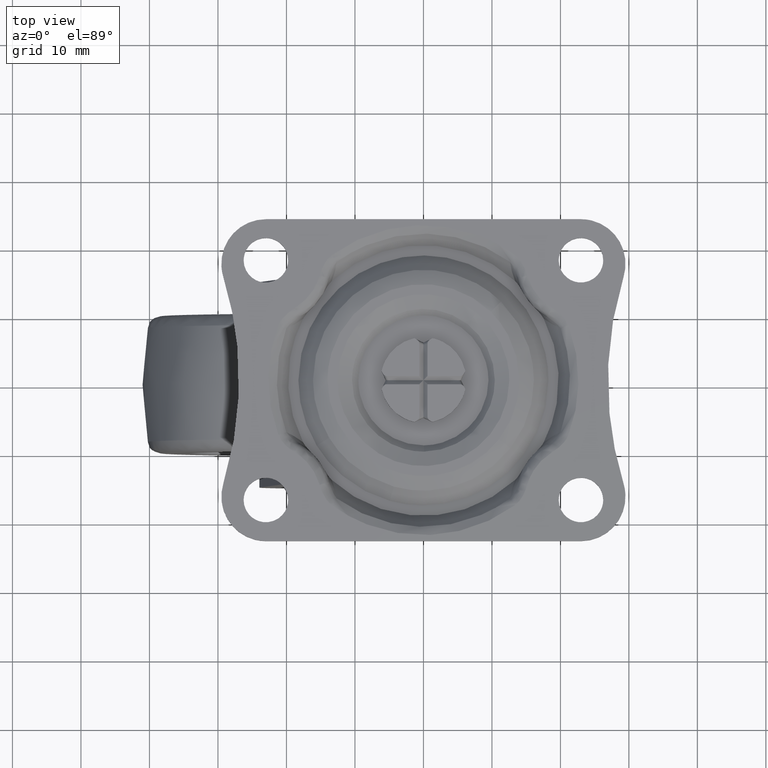
[diagram: clean part render]
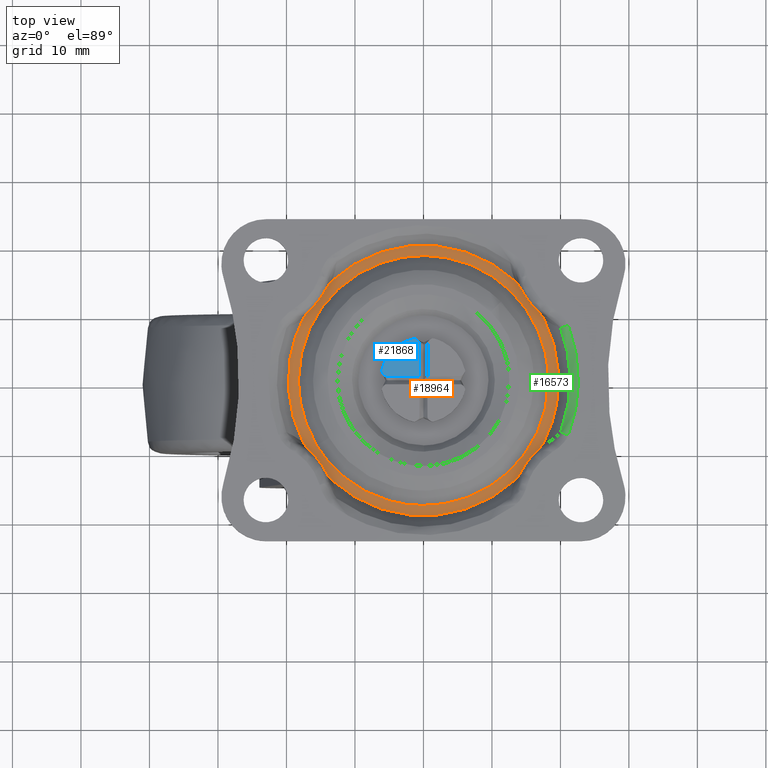
[diagram: same view with three faces highlighted in distinct colors, each labeled with its STEP entity id]
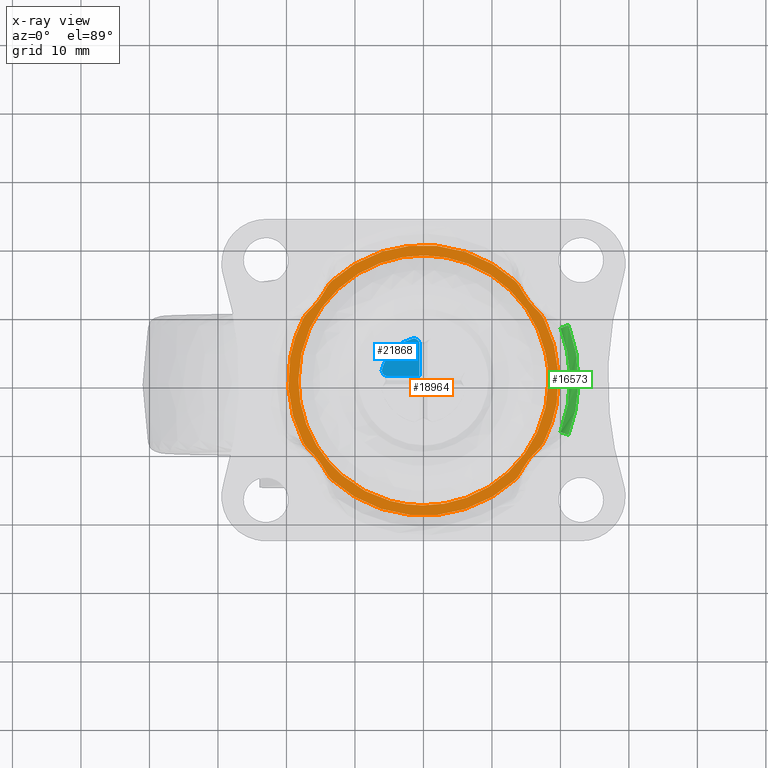
[diagram: x-ray of the same camera — body ghosted, the three highlighted faces saturated]
A machine part, top view with three faces highlighted in distinct colors.
The next image is the same camera in x-ray (body ghosted, the three faces saturated) — at least one of them is partly hidden behind the body in this view.
Their STEP definitions:

[orange] entity #18964 — the highlighted face is a freeform B-spline surface patch.
#10193=CARTESIAN_POINT('',(-4.877100363517283,-17.586255771042829,-3.000000000009800));
#10194=VERTEX_POINT('',#10193);
#10200=CARTESIAN_POINT('',(18.250000000000000,0.0,-3.0));
#10201=VERTEX_POINT('',#10200);
#10202=CARTESIAN_POINT('',(18.250000000000000,0.0,-3.0));
#10203=CARTESIAN_POINT('',(18.250000000000000,-18.250000000000000,-3.000000000000000));
#10204=CARTESIAN_POINT('',(0.0,-18.250000000000000,-3.0));
#10205=CARTESIAN_POINT('',(-2.483715994340138,-18.250000000000000,-3.000000000000000));
#10206=CARTESIAN_POINT('',(-4.877100363517283,-17.586255771042829,-3.000000000009800));
#10214=(BOUNDED_CURVE()B_SPLINE_CURVE(2,(#10202,#10203,#10204,#10205,#10206),.UNSPECIFIED.,.F.,.U.)B_SPLINE_CURVE_WITH_KNOTS((3,2,3),(0.500000000000000,0.750000000000000,0.795548826635574),.UNSPECIFIED.)CURVE()GEOMETRIC_REPRESENTATION_ITEM()RATIONAL_B_SPLINE_CURVE((1.0,0.707106781186547,1.0,0.946636230214123,0.912717717217027))REPRESENTATION_ITEM(''));
#10215=EDGE_CURVE('',#10201,#10194,#10214,.T.);
#10217=CARTESIAN_POINT('',(-18.250000000000000,0.0,-3.0));
#10218=VERTEX_POINT('',#10217);
#10219=CARTESIAN_POINT('',(-18.250000000000000,0.0,-3.0));
#10220=CARTESIAN_POINT('',(-18.250000000000000,18.250000000000000,-3.000000000000000));
#10221=CARTESIAN_POINT('',(0.0,18.250000000000000,-3.0));
#10222=CARTESIAN_POINT('',(18.250000000000000,18.250000000000000,-3.000000000000000));
#10223=CARTESIAN_POINT('',(18.250000000000000,0.0,-3.0));
#10231=(BOUNDED_CURVE()B_SPLINE_CURVE(2,(#10219,#10220,#10221,#10222,#10223),.UNSPECIFIED.,.F.,.U.)B_SPLINE_CURVE_WITH_KNOTS((3,2,3),(0.0,0.250000000000000,0.500000000000000),.UNSPECIFIED.)CURVE()GEOMETRIC_REPRESENTATION_ITEM()RATIONAL_B_SPLINE_CURVE((1.0,0.707106781186547,1.0,0.707106781186547,1.0))REPRESENTATION_ITEM(''));
#10232=EDGE_CURVE('',#10218,#10201,#10231,.T.);
#10234=CARTESIAN_POINT('',(-15.577560697691240,-9.508002035643688,-3.000000000001631));
#10235=VERTEX_POINT('',#10234);
#10236=CARTESIAN_POINT('',(-15.577560697691242,-9.508002035643688,-3.000000000001631));
#10237=CARTESIAN_POINT('',(-18.249999999999996,-5.129575812507438,-3.0));
#10238=CARTESIAN_POINT('',(-18.250000000000000,0.0,-3.0));
#10246=(BOUNDED_CURVE()B_SPLINE_CURVE(2,(#10236,#10237,#10238),.UNSPECIFIED.,.F.,.U.)B_SPLINE_CURVE_WITH_KNOTS((3,3),(0.910988855203997,1.0),.UNSPECIFIED.)CURVE()GEOMETRIC_REPRESENTATION_ITEM()RATIONAL_B_SPLINE_CURVE((0.865692738530199,0.895716957161714,1.0))REPRESENTATION_ITEM(''));
#10247=EDGE_CURVE('',#10235,#10218,#10246,.T.);
#10285=CARTESIAN_POINT('',(-4.877100363517283,-17.586255771042826,-3.000000000009800));
#10286=CARTESIAN_POINT('',(-11.822521553776632,-15.660120006066887,-3.0));
#10287=CARTESIAN_POINT('',(-15.577560697691245,-9.508002035643688,-3.000000000001630));
#10295=(BOUNDED_CURVE()B_SPLINE_CURVE(2,(#10285,#10286,#10287),.UNSPECIFIED.,.F.,.U.)B_SPLINE_CURVE_WITH_KNOTS((3,3),(0.795548826635575,0.910988855203998),.UNSPECIFIED.)CURVE()GEOMETRIC_REPRESENTATION_ITEM()RATIONAL_B_SPLINE_CURVE((0.912717717217026,0.826753831896540,0.865692738530200))REPRESENTATION_ITEM(''));
#10296=EDGE_CURVE('',#10194,#10235,#10295,.T.);
#15747=CARTESIAN_POINT('',(13.377012107341500,-14.529901826235401,-3.0));
#15748=VERTEX_POINT('',#15747);
#15749=CARTESIAN_POINT('',(14.596050804764619,-12.756990625783800,-3.0));
#15750=VERTEX_POINT('',#15749);
#15751=CARTESIAN_POINT('',(13.377012107341500,-14.529901826235401,-3.0));
#15752=CARTESIAN_POINT('',(13.511091351440690,-14.406461235024841,-3.000000000000305));
#15753=CARTESIAN_POINT('',(13.630411317027869,-14.271914206686750,-3.000000000000001));
#15754=CARTESIAN_POINT('',(13.852045226693910,-13.990023026593100,-3.0));
#15755=CARTESIAN_POINT('',(13.954134046865621,-13.842509467876420,-3.0));
#15756=CARTESIAN_POINT('',(14.148231414741190,-13.539896890740440,-3.0));
#15757=CARTESIAN_POINT('',(14.240235984406009,-13.384637998962770,-3.0));
#15758=CARTESIAN_POINT('',(14.419804229476160,-13.071758768689049,-3.0));
#15759=CARTESIAN_POINT('',(14.507396895809370,-12.914072952221790,-3.0));
#15760=CARTESIAN_POINT('',(14.596050804764619,-12.756990625783819,-3.0));
#15761=B_SPLINE_CURVE_WITH_KNOTS('',3,(#15751,#15752,#15753,#15754,#15755,#15756,#15757,#15758,#15759,#15760),.UNSPECIFIED.,.F.,.U.,(4,2,2,2,4),(0.0,0.250000000000000,0.500000000000000,0.750000000000000,1.0),.UNSPECIFIED.);
#15762=EDGE_CURVE('',#15748,#15750,#15761,.T.);
#16395=CARTESIAN_POINT('',(-14.596050804764641,-12.756990625783800,-3.0));
#16396=VERTEX_POINT('',#16395);
#16397=CARTESIAN_POINT('',(-13.377012107341180,-14.529901826235699,-3.0));
#16398=VERTEX_POINT('',#16397);
#16399=CARTESIAN_POINT('',(-14.596050804764619,-12.756990625783800,-3.0));
#16400=CARTESIAN_POINT('',(-14.419308273064880,-13.070153670562190,-3.0));
#16401=CARTESIAN_POINT('',(-14.246719660022290,-13.386030352582670,-3.0));
#16402=CARTESIAN_POINT('',(-13.956320266587269,-13.839256557127870,-3.0));
#16403=CARTESIAN_POINT('',(-13.854315517706050,-13.986931711736039,-3.0));
#16404=CARTESIAN_POINT('',(-13.687489573716849,-14.199417000046340,-3.0));
#16405=CARTESIAN_POINT('',(-13.629561487152600,-14.268730206052430,-3.0));
#16406=CARTESIAN_POINT('',(-13.507602119617021,-14.403369574261980,-3.0));
#16407=CARTESIAN_POINT('',(-13.443914093633190,-14.468308245540101,-2.999999999999999));
#16408=CARTESIAN_POINT('',(-13.377012107341180,-14.529901826235699,-3.0));
#16409=B_SPLINE_CURVE_WITH_KNOTS('',3,(#16399,#16400,#16401,#16402,#16403,#16404,#16405,#16406,#16407,#16408),.UNSPECIFIED.,.F.,.U.,(4,2,2,2,4),(0.0,0.499999999999997,0.749999999999998,0.874999999999999,1.0),.UNSPECIFIED.);
#16410=EDGE_CURVE('',#16396,#16398,#16409,.T.);
#16642=CARTESIAN_POINT('',(16.187545968892248,-10.665311267216040,-3.0));
#16643=VERTEX_POINT('',#16642);
#16644=CARTESIAN_POINT('',(17.571146862651901,-9.017610433541631,-3.0));
#16645=VERTEX_POINT('',#16644);
#16646=CARTESIAN_POINT('',(16.187545968892248,-10.665311267216040,-3.0));
#16647=CARTESIAN_POINT('',(16.442232412604302,-10.411453372881780,-3.0));
#16648=CARTESIAN_POINT('',(16.700642009097869,-10.160875265226190,-3.000000000000001));
#16649=CARTESIAN_POINT('',(17.060008222532471,-9.760123815028464,-3.0));
#16650=CARTESIAN_POINT('',(17.175131768352632,-9.622430353743400,-3.0));
#16651=CARTESIAN_POINT('',(17.335431293125090,-9.404979311681231,-3.0));
#16652=CARTESIAN_POINT('',(17.386785557779650,-9.330664284656887,-3.0));
#16653=CARTESIAN_POINT('',(17.484023800569389,-9.177215365010287,-3.0));
#16654=CARTESIAN_POINT('',(17.529625862935159,-9.098515634457543,-3.0));
#16655=CARTESIAN_POINT('',(17.571146862651901,-9.017610433541631,-3.0));
#16656=B_SPLINE_CURVE_WITH_KNOTS('',3,(#16646,#16647,#16648,#16649,#16650,#16651,#16652,#16653,#16654,#16655),.UNSPECIFIED.,.F.,.U.,(4,2,2,2,4),(0.0,0.499999999999999,0.750000000000000,0.875000000000000,1.0),.UNSPECIFIED.);
#16657=EDGE_CURVE('',#16643,#16645,#16656,.T.);
#16991=CARTESIAN_POINT('',(-17.571146862651698,-9.017610433541989,-3.0));
#16992=VERTEX_POINT('',#16991);
#16993=CARTESIAN_POINT('',(-16.187545968892302,-10.665311267216000,-3.0));
#16994=VERTEX_POINT('',#16993);
#16995=CARTESIAN_POINT('',(-17.571146862651698,-9.017610433541989,-3.0));
#16996=CARTESIAN_POINT('',(-17.487934023021140,-9.179753723804781,-3.000000000000294));
#16997=CARTESIAN_POINT('',(-17.390080882670809,-9.330634206127462,-3.000000000000001));
#16998=CARTESIAN_POINT('',(-17.177505669743809,-9.619417872870374,-3.0));
#16999=CARTESIAN_POINT('',(-17.062560288033328,-9.757149265198857,-3.0));
#17000=CARTESIAN_POINT('',(-16.822670511439281,-10.024919792222949,-3.0));
#17001=CARTESIAN_POINT('',(-16.697570972393269,-10.154997729036660,-3.0));
#17002=CARTESIAN_POINT('',(-16.443911644310688,-10.411503309192231,-3.0));
#17003=CARTESIAN_POINT('',(-16.315296480191648,-10.537976355605061,-3.0));
#17004=CARTESIAN_POINT('',(-16.187545968892302,-10.665311267216000,-3.0));
#17005=B_SPLINE_CURVE_WITH_KNOTS('',3,(#16995,#16996,#16997,#16998,#16999,#17000,#17001,#17002,#17003,#17004),.UNSPECIFIED.,.F.,.U.,(4,2,2,2,4),(0.0,0.250000000000000,0.500000000000000,0.750000000000000,1.0),.UNSPECIFIED.);
#17006=EDGE_CURVE('',#16992,#16994,#17005,.T.);
#17236=CARTESIAN_POINT('',(17.571146862651698,9.017610433542000,-3.0));
#17237=VERTEX_POINT('',#17236);
#17238=CARTESIAN_POINT('',(16.187545968892302,10.665311267216000,-3.0));
#17239=VERTEX_POINT('',#17238);
#17240=CARTESIAN_POINT('',(17.571146862651698,9.017610433542000,-3.0));
#17241=CARTESIAN_POINT('',(17.487934023021140,9.179753723804792,-3.000000000000294));
#17242=CARTESIAN_POINT('',(17.390080882670802,9.330634206127471,-3.000000000000001));
#17243=CARTESIAN_POINT('',(17.177505669743802,9.619417872870379,-3.0));
#17244=CARTESIAN_POINT('',(17.062560288033328,9.757149265198862,-3.0));
#17245=CARTESIAN_POINT('',(16.822670511439270,10.024919792222949,-3.0));
#17246=CARTESIAN_POINT('',(16.697570972393269,10.154997729036660,-3.0));
#17247=CARTESIAN_POINT('',(16.443911644310688,10.411503309192231,-3.0));
#17248=CARTESIAN_POINT('',(16.315296480191648,10.537976355605061,-3.0));
#17249=CARTESIAN_POINT('',(16.187545968892302,10.665311267216000,-3.0));
#17250=B_SPLINE_CURVE_WITH_KNOTS('',3,(#17240,#17241,#17242,#17243,#17244,#17245,#17246,#17247,#17248,#17249),.UNSPECIFIED.,.F.,.U.,(4,2,2,2,4),(0.0,0.250000000000000,0.500000000000000,0.750000000000000,1.0),.UNSPECIFIED.);
#17251=EDGE_CURVE('',#17237,#17239,#17250,.T.);
#17615=CARTESIAN_POINT('',(-16.187545968892248,10.665311267216040,-3.0));
#17616=VERTEX_POINT('',#17615);
#17617=CARTESIAN_POINT('',(-17.571146862651901,9.017610433541631,-3.0));
#17618=VERTEX_POINT('',#17617);
#17619=CARTESIAN_POINT('',(-16.187545968892248,10.665311267216040,-3.0));
#17620=CARTESIAN_POINT('',(-16.442232412604302,10.411453372881780,-3.0));
#17621=CARTESIAN_POINT('',(-16.700642009097869,10.160875265226190,-3.000000000000001));
#17622=CARTESIAN_POINT('',(-17.060008222532471,9.760123815028464,-3.0));
#17623=CARTESIAN_POINT('',(-17.175131768352632,9.622430353743400,-3.0));
#17624=CARTESIAN_POINT('',(-17.335431293125090,9.404979311681231,-3.0));
#17625=CARTESIAN_POINT('',(-17.386785557779650,9.330664284656887,-3.0));
#17626=CARTESIAN_POINT('',(-17.484023800569389,9.177215365010289,-3.0));
#17627=CARTESIAN_POINT('',(-17.529625862935159,9.098515634457550,-3.0));
#17628=CARTESIAN_POINT('',(-17.571146862651901,9.017610433541639,-3.0));
#17629=B_SPLINE_CURVE_WITH_KNOTS('',3,(#17619,#17620,#17621,#17622,#17623,#17624,#17625,#17626,#17627,#17628),.UNSPECIFIED.,.F.,.U.,(4,2,2,2,4),(0.0,0.499999999999999,0.750000000000000,0.875000000000000,1.0),.UNSPECIFIED.);
#17630=EDGE_CURVE('',#17616,#17618,#17629,.T.);
#17862=CARTESIAN_POINT('',(14.596050804764641,12.756990625783800,-3.0));
#17863=VERTEX_POINT('',#17862);
#17864=CARTESIAN_POINT('',(13.377012107341180,14.529901826235699,-3.0));
#17865=VERTEX_POINT('',#17864);
#17866=CARTESIAN_POINT('',(14.596050804764641,12.756990625783800,-3.0));
#17867=CARTESIAN_POINT('',(14.419308273064891,13.070153670562190,-3.0));
#17868=CARTESIAN_POINT('',(14.246719660022301,13.386030352582660,-3.0));
#17869=CARTESIAN_POINT('',(13.956320266587269,13.839256557127870,-3.0));
#17870=CARTESIAN_POINT('',(13.854315517706050,13.986931711736039,-3.0));
#17871=CARTESIAN_POINT('',(13.687489573716860,14.199417000046340,-3.000000000000001));
#17872=CARTESIAN_POINT('',(13.629561487152600,14.268730206052430,-3.0));
#17873=CARTESIAN_POINT('',(13.507602119617021,14.403369574261980,-3.0));
#17874=CARTESIAN_POINT('',(13.443914093633190,14.468308245540101,-3.0));
#17875=CARTESIAN_POINT('',(13.377012107341180,14.529901826235699,-3.0));
#17876=B_SPLINE_CURVE_WITH_KNOTS('',3,(#17866,#17867,#17868,#17869,#17870,#17871,#17872,#17873,#17874,#17875),.UNSPECIFIED.,.F.,.U.,(4,2,2,2,4),(0.0,0.499999999999999,0.749999999999999,0.875000000000000,1.0),.UNSPECIFIED.);
#17877=EDGE_CURVE('',#17863,#17865,#17876,.T.);
#18081=CARTESIAN_POINT('',(-14.596050804764619,12.756990625783819,-3.0));
#18082=VERTEX_POINT('',#18081);
#18096=CARTESIAN_POINT('',(-13.377012107341500,14.529901826235401,-3.0));
#18097=VERTEX_POINT('',#18096);
#18098=CARTESIAN_POINT('',(-13.377012107341500,14.529901826235401,-3.0));
#18099=CARTESIAN_POINT('',(-13.511091351440680,14.406461235024850,-3.000000000000294));
#18100=CARTESIAN_POINT('',(-13.630411317027869,14.271914206686761,-3.000000000000001));
#18101=CARTESIAN_POINT('',(-13.852045226693900,13.990023026593100,-3.0));
#18102=CARTESIAN_POINT('',(-13.954134046865610,13.842509467876431,-3.0));
#18103=CARTESIAN_POINT('',(-14.148231414741179,13.539896890740440,-3.0));
#18104=CARTESIAN_POINT('',(-14.240235984406000,13.384637998962781,-3.0));
#18105=CARTESIAN_POINT('',(-14.419804229476149,13.071758768689060,-3.0));
#18106=CARTESIAN_POINT('',(-14.507396895809361,12.914072952221790,-3.0));
#18107=CARTESIAN_POINT('',(-14.596050804764619,12.756990625783819,-3.0));
#18108=B_SPLINE_CURVE_WITH_KNOTS('',3,(#18098,#18099,#18100,#18101,#18102,#18103,#18104,#18105,#18106,#18107),.UNSPECIFIED.,.F.,.U.,(4,2,2,2,4),(0.0,0.250000000000000,0.500000000000000,0.750000000000000,1.0),.UNSPECIFIED.);
#18109=EDGE_CURVE('',#18097,#18082,#18108,.T.);
#18733=CARTESIAN_POINT('',(-16.187545968892259,10.665311267216049,-3.0));
#18734=CARTESIAN_POINT('',(-15.248035025869260,11.601765780552723,-3.000000000000000));
#18735=CARTESIAN_POINT('',(-14.596050804764619,12.756990625783819,-3.0));
#18743=(BOUNDED_CURVE()B_SPLINE_CURVE(2,(#18733,#18734,#18735),.UNSPECIFIED.,.F.,.U.)CURVE()GEOMETRIC_REPRESENTATION_ITEM()QUASI_UNIFORM_CURVE()RATIONAL_B_SPLINE_CURVE((1.0,0.990683900649005,1.0))REPRESENTATION_ITEM(''));
#18744=EDGE_CURVE('',#17616,#18082,#18743,.T.);
#18766=CARTESIAN_POINT('',(14.596050804764630,12.756990625783800,-3.0));
#18767=CARTESIAN_POINT('',(15.248035025869285,11.601765780552697,-3.000000000000000));
#18768=CARTESIAN_POINT('',(16.187545968892309,10.665311267216010,-3.0));
#18776=(BOUNDED_CURVE()B_SPLINE_CURVE(2,(#18766,#18767,#18768),.UNSPECIFIED.,.F.,.U.)CURVE()GEOMETRIC_REPRESENTATION_ITEM()QUASI_UNIFORM_CURVE()RATIONAL_B_SPLINE_CURVE((1.0,0.990683900649005,1.0))REPRESENTATION_ITEM(''));
#18777=EDGE_CURVE('',#17863,#17239,#18776,.T.);
#18799=CARTESIAN_POINT('',(16.187545968892259,-10.665311267216049,-3.0));
#18800=CARTESIAN_POINT('',(15.248035025869259,-11.601765780552723,-3.0));
#18801=CARTESIAN_POINT('',(14.596050804764630,-12.756990625783800,-3.0));
#18809=(BOUNDED_CURVE()B_SPLINE_CURVE(2,(#18799,#18800,#18801),.UNSPECIFIED.,.F.,.U.)CURVE()GEOMETRIC_REPRESENTATION_ITEM()QUASI_UNIFORM_CURVE()RATIONAL_B_SPLINE_CURVE((1.0,0.990683900649005,1.0))REPRESENTATION_ITEM(''));
#18810=EDGE_CURVE('',#16643,#15750,#18809,.T.);
#18834=CARTESIAN_POINT('',(-14.596050804764630,-12.756990625783800,-3.0));
#18835=CARTESIAN_POINT('',(-15.248035025869283,-11.601765780552686,-3.000000000000000));
#18836=CARTESIAN_POINT('',(-16.187545968892309,-10.665311267216000,-3.0));
#18844=(BOUNDED_CURVE()B_SPLINE_CURVE(2,(#18834,#18835,#18836),.UNSPECIFIED.,.F.,.U.)CURVE()GEOMETRIC_REPRESENTATION_ITEM()QUASI_UNIFORM_CURVE()RATIONAL_B_SPLINE_CURVE((1.0,0.990683900649005,1.0))REPRESENTATION_ITEM(''));
#18845=EDGE_CURVE('',#16396,#16994,#18844,.T.);
#18887=CARTESIAN_POINT('',(-21.723024923441329,-21.723024923441251,-3.0));
#18888=CARTESIAN_POINT('',(21.723025982913889,-21.723024923441251,-3.0));
#18889=CARTESIAN_POINT('',(-21.723024923441329,21.723025982913811,-3.0));
#18890=CARTESIAN_POINT('',(21.723025982913889,21.723025982913811,-3.0));
#18891=B_SPLINE_SURFACE_WITH_KNOTS('',1,1,((#18887,#18889),(#18888,#18890)),.UNSPECIFIED.,.F.,.F.,.U.,(2,2),(2,2),(0.0,43.446050906355232),(0.0,43.446050906355062),.UNSPECIFIED.);
#18892=CARTESIAN_POINT('',(13.377012107341510,-14.529901826235401,-3.0));
#18893=CARTESIAN_POINT('',(3.018419E-013,-26.845501412521145,-2.999999999999999));
#18894=CARTESIAN_POINT('',(-13.377012107341180,-14.529901826235699,-3.0));
#18902=(BOUNDED_CURVE()B_SPLINE_CURVE(2,(#18892,#18893,#18894),.UNSPECIFIED.,.F.,.U.)CURVE()GEOMETRIC_REPRESENTATION_ITEM()QUASI_UNIFORM_CURVE()RATIONAL_B_SPLINE_CURVE((1.0,0.735691231708129,1.0))REPRESENTATION_ITEM(''));
#18903=EDGE_CURVE('',#15748,#16398,#18902,.T.);
#18904=ORIENTED_EDGE('',*,*,#18903,.F.);
#18905=ORIENTED_EDGE('',*,*,#15762,.T.);
#18906=ORIENTED_EDGE('',*,*,#18810,.F.);
#18907=ORIENTED_EDGE('',*,*,#16657,.T.);
#18908=CARTESIAN_POINT('',(17.571146862651698,9.017610433541998,-3.0));
#18909=CARTESIAN_POINT('',(22.199034761304862,2.411266E-013,-3.000000000000000));
#18910=CARTESIAN_POINT('',(17.571146862651890,-9.017610433541618,-3.0));
#18918=(BOUNDED_CURVE()B_SPLINE_CURVE(2,(#18908,#18909,#18910),.UNSPECIFIED.,.F.,.U.)CURVE()GEOMETRIC_REPRESENTATION_ITEM()QUASI_UNIFORM_CURVE()RATIONAL_B_SPLINE_CURVE((1.0,0.889678322159584,1.0))REPRESENTATION_ITEM(''));
#18919=EDGE_CURVE('',#17237,#16645,#18918,.T.);
#18920=ORIENTED_EDGE('',*,*,#18919,.F.);
#18921=ORIENTED_EDGE('',*,*,#17251,.T.);
#18922=ORIENTED_EDGE('',*,*,#18777,.F.);
#18923=ORIENTED_EDGE('',*,*,#17877,.T.);
#18924=CARTESIAN_POINT('',(-13.377012107341500,14.529901826235401,-3.0));
#18925=CARTESIAN_POINT('',(-3.001072E-013,26.845501412521145,-2.999999999999999));
#18926=CARTESIAN_POINT('',(13.377012107341180,14.529901826235699,-3.0));
#18934=(BOUNDED_CURVE()B_SPLINE_CURVE(2,(#18924,#18925,#18926),.UNSPECIFIED.,.F.,.U.)CURVE()GEOMETRIC_REPRESENTATION_ITEM()QUASI_UNIFORM_CURVE()RATIONAL_B_SPLINE_CURVE((1.0,0.735691231708129,1.0))REPRESENTATION_ITEM(''));
#18935=EDGE_CURVE('',#18097,#17865,#18934,.T.);
#18936=ORIENTED_EDGE('',*,*,#18935,.F.);
#18937=ORIENTED_EDGE('',*,*,#18109,.T.);
#18938=ORIENTED_EDGE('',*,*,#18744,.F.);
#18939=ORIENTED_EDGE('',*,*,#17630,.T.);
#18940=CARTESIAN_POINT('',(-17.571146862651691,-9.017610433542000,-3.0));
#18941=CARTESIAN_POINT('',(-22.199034761304862,-2.428613E-013,-3.000000000000000));
#18942=CARTESIAN_POINT('',(-17.571146862651890,9.017610433541616,-3.0));
#18950=(BOUNDED_CURVE()B_SPLINE_CURVE(2,(#18940,#18941,#18942),.UNSPECIFIED.,.F.,.U.)CURVE()GEOMETRIC_REPRESENTATION_ITEM()QUASI_UNIFORM_CURVE()RATIONAL_B_SPLINE_CURVE((1.0,0.889678322159584,1.0))REPRESENTATION_ITEM(''));
#18951=EDGE_CURVE('',#16992,#17618,#18950,.T.);
#18952=ORIENTED_EDGE('',*,*,#18951,.F.);
#18953=ORIENTED_EDGE('',*,*,#17006,.T.);
#18954=ORIENTED_EDGE('',*,*,#18845,.F.);
#18955=ORIENTED_EDGE('',*,*,#16410,.T.);
#18956=EDGE_LOOP('',(#18904,#18905,#18906,#18907,#18920,#18921,#18922,#18923,#18936,#18937,#18938,#18939,#18952,#18953,#18954,#18955));
#18957=FACE_OUTER_BOUND('',#18956,.T.);
#18958=ORIENTED_EDGE('',*,*,#10232,.T.);
#18959=ORIENTED_EDGE('',*,*,#10215,.T.);
#18960=ORIENTED_EDGE('',*,*,#10296,.T.);
#18961=ORIENTED_EDGE('',*,*,#10247,.T.);
#18962=EDGE_LOOP('',(#18958,#18959,#18960,#18961));
#18963=FACE_BOUND('',#18962,.T.);
#18964=ADVANCED_FACE('',(#18957,#18963),#18891,.T.);

[blue] entity #21868 — the highlighted face is a freeform B-spline surface patch.
#21232=CARTESIAN_POINT('',(-0.600000000000000,5.380510082144240,0.0));
#21233=VERTEX_POINT('',#21232);
#21234=CARTESIAN_POINT('',(-1.102074505435670,5.995497468188599,0.0));
#21235=VERTEX_POINT('',#21234);
#21236=CARTESIAN_POINT('',(-0.600000000000000,5.380510082144240,0.0));
#21237=CARTESIAN_POINT('',(-0.599999999999831,5.769762597217089,0.0));
#21238=CARTESIAN_POINT('',(-1.102074505435673,5.995497468188592,0.0));
#21246=(BOUNDED_CURVE()B_SPLINE_CURVE(2,(#21236,#21237,#21238),.UNSPECIFIED.,.F.,.U.)CURVE()GEOMETRIC_REPRESENTATION_ITEM()QUASI_UNIFORM_CURVE()RATIONAL_B_SPLINE_CURVE((1.0,0.803106289693589,1.0))REPRESENTATION_ITEM(''));
#21247=EDGE_CURVE('',#21233,#21235,#21246,.T.);
#21294=CARTESIAN_POINT('',(-5.380510082144240,0.600000000000000,0.0));
#21295=VERTEX_POINT('',#21294);
#21301=CARTESIAN_POINT('',(-5.995497468188550,1.102074505435564,0.0));
#21302=VERTEX_POINT('',#21301);
#21303=CARTESIAN_POINT('',(-5.995497468188535,1.102074505435570,0.0));
#21304=CARTESIAN_POINT('',(-5.769762597217284,0.600000000000287,0.0));
#21305=CARTESIAN_POINT('',(-5.380510082144240,0.600000000000000,0.0));
#21313=(BOUNDED_CURVE()B_SPLINE_CURVE(2,(#21303,#21304,#21305),.UNSPECIFIED.,.F.,.U.)CURVE()GEOMETRIC_REPRESENTATION_ITEM()QUASI_UNIFORM_CURVE()RATIONAL_B_SPLINE_CURVE((1.0,0.803106289693922,1.0))REPRESENTATION_ITEM(''));
#21314=EDGE_CURVE('',#21302,#21295,#21313,.T.);
#21469=CARTESIAN_POINT('',(-1.343275150030536,6.103942322082550,0.0));
#21470=VERTEX_POINT('',#21469);
#21471=CARTESIAN_POINT('',(-1.343275150030536,6.103942322082550,0.0));
#21472=CARTESIAN_POINT('',(-1.102074505435670,5.995497468188599,0.0));
#21473=QUASI_UNIFORM_CURVE('',1,(#21471,#21472),.UNSPECIFIED.,.F.,.U.);
#21474=EDGE_CURVE('',#21470,#21235,#21473,.T.);
#21504=CARTESIAN_POINT('',(-6.103942322082550,1.343275150030544,0.0));
#21505=VERTEX_POINT('',#21504);
#21506=CARTESIAN_POINT('',(-5.995497468188550,1.102074505435564,0.0));
#21507=CARTESIAN_POINT('',(-6.103942322082550,1.343275150030544,0.0));
#21508=QUASI_UNIFORM_CURVE('',1,(#21506,#21507),.UNSPECIFIED.,.F.,.U.);
#21509=EDGE_CURVE('',#21302,#21505,#21508,.T.);
#21698=CARTESIAN_POINT('',(-0.600000000000101,0.600000000000107,2.775558E-014));
#21699=VERTEX_POINT('',#21698);
#21700=CARTESIAN_POINT('',(-0.600000000000101,0.600000000000107,2.775558E-014));
#21701=CARTESIAN_POINT('',(-5.380510082144240,0.600000000000000,0.0));
#21702=QUASI_UNIFORM_CURVE('',1,(#21700,#21701),.UNSPECIFIED.,.F.,.U.);
#21703=EDGE_CURVE('',#21699,#21295,#21702,.T.);
#21781=CARTESIAN_POINT('',(-0.600000000000000,5.380510082144240,0.0));
#21782=CARTESIAN_POINT('',(-0.600000000000101,0.600000000000107,2.775558E-014));
#21783=QUASI_UNIFORM_CURVE('',1,(#21781,#21782),.UNSPECIFIED.,.F.,.U.);
#21784=EDGE_CURVE('',#21233,#21699,#21783,.T.);
#21842=CARTESIAN_POINT('',(-6.378864333737011,0.325078091679685,0.0));
#21843=CARTESIAN_POINT('',(-0.325077939136461,0.325078091679685,0.0));
#21844=CARTESIAN_POINT('',(-6.378864333737011,6.378864378030102,0.0));
#21845=CARTESIAN_POINT('',(-0.325077939136461,6.378864378030102,0.0));
#21846=B_SPLINE_SURFACE_WITH_KNOTS('',1,1,((#21842,#21844),(#21843,#21845)),.UNSPECIFIED.,.F.,.F.,.U.,(2,2),(2,2),(0.0,6.053786394600549),(0.0,6.053786286350418),.UNSPECIFIED.);
#21847=ORIENTED_EDGE('',*,*,#21509,.F.);
#21848=ORIENTED_EDGE('',*,*,#21314,.T.);
#21849=ORIENTED_EDGE('',*,*,#21703,.F.);
#21850=ORIENTED_EDGE('',*,*,#21784,.F.);
#21851=ORIENTED_EDGE('',*,*,#21247,.T.);
#21852=ORIENTED_EDGE('',*,*,#21474,.F.);
#21853=CARTESIAN_POINT('',(-1.343275150030534,6.103942322082546,0.0));
#21854=CARTESIAN_POINT('',(-5.245247657433640,5.245247657433646,0.0));
#21855=CARTESIAN_POINT('',(-6.103942322082549,1.343275150030545,0.0));
#21863=(BOUNDED_CURVE()B_SPLINE_CURVE(2,(#21853,#21854,#21855),.UNSPECIFIED.,.F.,.U.)CURVE()GEOMETRIC_REPRESENTATION_ITEM()QUASI_UNIFORM_CURVE()RATIONAL_B_SPLINE_CURVE((1.0,0.842556476080336,1.0))REPRESENTATION_ITEM(''));
#21864=EDGE_CURVE('',#21470,#21505,#21863,.T.);
#21865=ORIENTED_EDGE('',*,*,#21864,.T.);
#21866=EDGE_LOOP('',(#21847,#21848,#21849,#21850,#21851,#21852,#21865));
#21867=FACE_OUTER_BOUND('',#21866,.T.);
#21868=ADVANCED_FACE('',(#21867),#21846,.T.);

[green] entity #16573 — the highlighted face is a freeform B-spline surface patch.
#16270=CARTESIAN_POINT('',(21.164046346558951,-8.015269757337149,0.0));
#16271=VERTEX_POINT('',#16270);
#16272=CARTESIAN_POINT('',(20.014852203810900,-7.580045750224030,-0.639806483455010));
#16273=VERTEX_POINT('',#16272);
#16274=CARTESIAN_POINT('',(21.164046346558951,-8.015269757337149,0.0));
#16275=CARTESIAN_POINT('',(20.433686229035434,-7.738667010107611,0.0));
#16276=CARTESIAN_POINT('',(20.014852203810921,-7.580045750224025,-0.639806483455023));
#16284=(BOUNDED_CURVE()B_SPLINE_CURVE(2,(#16274,#16275,#16276),.UNSPECIFIED.,.F.,.U.)CURVE()GEOMETRIC_REPRESENTATION_ITEM()QUASI_UNIFORM_CURVE()RATIONAL_B_SPLINE_CURVE((1.0,0.886978676283516,1.0))REPRESENTATION_ITEM(''));
#16285=EDGE_CURVE('',#16271,#16273,#16284,.T.);
#16510=CARTESIAN_POINT('',(19.700005546667413,8.266239334388864,-0.697018665404488));
#16511=CARTESIAN_POINT('',(23.168568575940665,0.000000219900363,-0.697018665404488));
#16512=CARTESIAN_POINT('',(19.700005703582509,-8.266238960430639,-0.697018665404488));
#16513=CARTESIAN_POINT('',(20.129776162703912,8.446573637474701,0.038366914887509));
#16514=CARTESIAN_POINT('',(23.674008534623827,0.000000224697657,0.038366914887509));
#16515=CARTESIAN_POINT('',(20.129776323042208,-8.446573255358292,0.038366914887509));
#16516=CARTESIAN_POINT('',(20.931758714487117,8.783090279530436,-0.001579689900173));
#16517=CARTESIAN_POINT('',(24.617195464377790,0.000000233649749,-0.001579689900173));
#16518=CARTESIAN_POINT('',(20.931758881213394,-8.783089882190275,-0.001579689900173));
#16526=(BOUNDED_SURFACE()B_SPLINE_SURFACE(2,2,((#16510,#16513,#16516),(#16511,#16514,#16517),(#16512,#16515,#16518)),.UNSPECIFIED.,.F.,.F.,.U.)B_SPLINE_SURFACE_WITH_KNOTS((3,3),(3,3),(0.0,18.278000555963182),(0.0,1.615107325682760),.UNSPECIFIED.)GEOMETRIC_REPRESENTATION_ITEM()RATIONAL_B_SPLINE_SURFACE(((0.871721282420025,0.753422498327691,0.870556631367145),(0.803824468536299,0.694739765467535,0.802750530073981),(0.871721279088977,0.753422495448690,0.870556628040547)))REPRESENTATION_ITEM('')SURFACE());
#16527=CARTESIAN_POINT('',(21.164046346559100,8.015269757336789,0.0));
#16528=VERTEX_POINT('',#16527);
#16529=CARTESIAN_POINT('',(20.014852203811049,7.580045750224130,-0.639806483454818));
#16530=VERTEX_POINT('',#16529);
#16531=CARTESIAN_POINT('',(21.164046346559100,8.015269757336789,0.0));
#16532=CARTESIAN_POINT('',(20.433686229035718,7.738667010107318,0.0));
#16533=CARTESIAN_POINT('',(20.014852203811049,7.580045750224130,-0.639806483454818));
#16541=(BOUNDED_CURVE()B_SPLINE_CURVE(2,(#16531,#16532,#16533),.UNSPECIFIED.,.F.,.U.)CURVE()GEOMETRIC_REPRESENTATION_ITEM()QUASI_UNIFORM_CURVE()RATIONAL_B_SPLINE_CURVE((1.0,0.886978676283555,1.0))REPRESENTATION_ITEM(''));
#16542=EDGE_CURVE('',#16528,#16530,#16541,.T.);
#16543=ORIENTED_EDGE('',*,*,#16542,.T.);
#16544=CARTESIAN_POINT('',(20.014852203810921,-7.580045750224038,-0.639806483455012));
#16545=CARTESIAN_POINT('',(22.885575054542215,1.561251E-014,-0.639806483455012));
#16546=CARTESIAN_POINT('',(20.014852203811049,7.580045750224130,-0.639806483454818));
#16554=(BOUNDED_CURVE()B_SPLINE_CURVE(2,(#16544,#16545,#16546),.UNSPECIFIED.,.F.,.U.)CURVE()GEOMETRIC_REPRESENTATION_ITEM()QUASI_UNIFORM_CURVE()RATIONAL_B_SPLINE_CURVE((1.0,0.935180147781941,1.0))REPRESENTATION_ITEM(''));
#16555=EDGE_CURVE('',#16273,#16530,#16554,.T.);
#16556=ORIENTED_EDGE('',*,*,#16555,.F.);
#16557=ORIENTED_EDGE('',*,*,#16285,.F.);
#16558=CARTESIAN_POINT('',(21.164046346559068,8.015269757336782,0.0));
#16559=CARTESIAN_POINT('',(24.199597688248730,-2.081668E-013,0.0));
#16560=CARTESIAN_POINT('',(21.164046346558941,-8.015269757337142,0.0));
#16568=(BOUNDED_CURVE()B_SPLINE_CURVE(2,(#16558,#16559,#16560),.UNSPECIFIED.,.F.,.U.)CURVE()GEOMETRIC_REPRESENTATION_ITEM()QUASI_UNIFORM_CURVE()RATIONAL_B_SPLINE_CURVE((1.0,0.935180147781945,1.0))REPRESENTATION_ITEM(''));
#16569=EDGE_CURVE('',#16528,#16271,#16568,.T.);
#16570=ORIENTED_EDGE('',*,*,#16569,.F.);
#16571=EDGE_LOOP('',(#16543,#16556,#16557,#16570));
#16572=FACE_OUTER_BOUND('',#16571,.T.);
#16573=ADVANCED_FACE('',(#16572),#16526,.T.);